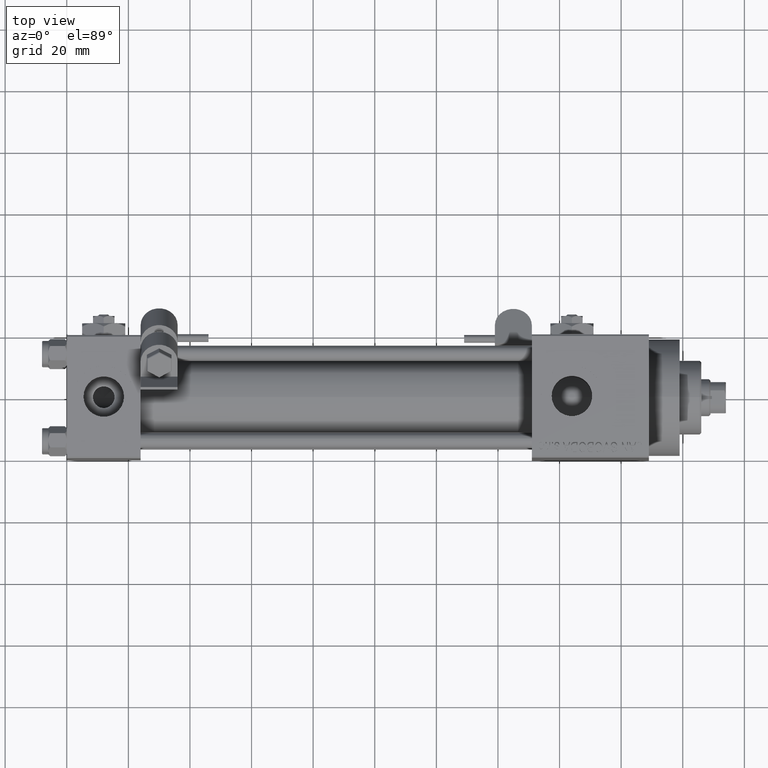
[diagram: clean part render]
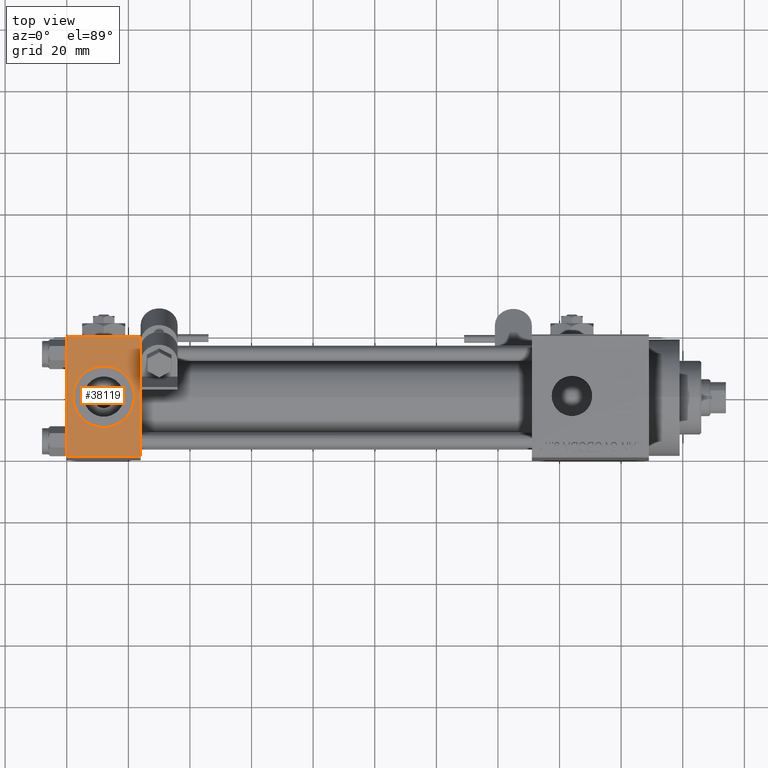
[diagram: same view with one face highlighted and labeled with its STEP entity id]
A machine part, top view. The second image highlights one B-rep face of the part: STEP entity #38119.
In plain terms, the highlighted planar face has unit normal (0, 0, -1).
Its self-contained STEP definition (entity closure, byte-faithful):
#1130 = CARTESIAN_POINT ( 'NONE',  ( 12.00000000000000000, 1.540743955509788682E-30, 19.99999999999999645 ) ) ;
#1450 = EDGE_CURVE ( 'NONE', #37485, #49149, #50050, .T. ) ;
#2316 = CARTESIAN_POINT ( 'NONE',  ( 24.00000000000000000, 20.00000000000000000, 20.00000000000000000 ) ) ;
#3018 = ORIENTED_EDGE ( 'NONE', *, *, #19131, .T. ) ;
#5644 = VERTEX_POINT ( 'NONE', #31225 ) ;
#6137 = DIRECTION ( 'NONE',  ( 0.000000000000000000, -1.000000000000000000, -2.602085213965210149E-16 ) ) ;
#6300 = CARTESIAN_POINT ( 'NONE',  ( 24.00000000000000000, 20.00000000000000000, 20.00000000000000000 ) ) ;
#8783 = CIRCLE ( 'NONE', #40379, 9.999999999999998224 ) ;
#10084 = EDGE_LOOP ( 'NONE', ( #34581, #24821 ) ) ;
#10517 = CARTESIAN_POINT ( 'NONE',  ( 0.000000000000000000, 20.00000000000000000, 20.00000000000000000 ) ) ;
#13434 = ORIENTED_EDGE ( 'NONE', *, *, #1450, .T. ) ;
#15819 = CARTESIAN_POINT ( 'NONE',  ( 24.00000000000000000, 19.50000000000000000, 20.00000000000000000 ) ) ;
#16764 = EDGE_CURVE ( 'NONE', #33687, #46568, #42391, .T. ) ;
#18188 = FACE_OUTER_BOUND ( 'NONE', #38082, .T. ) ;
#18887 = CARTESIAN_POINT ( 'NONE',  ( 0.000000000000000000, -19.49999999999999289, 19.99999999999998934 ) ) ;
#19131 = EDGE_CURVE ( 'NONE', #49149, #5644, #32848, .T. ) ;
#19407 = VECTOR ( 'NONE', #40735, 1000.000000000000000 ) ;
#19834 = CARTESIAN_POINT ( 'NONE',  ( 12.00000000000000000, 1.540743955509788682E-30, 19.99999999999999645 ) ) ;
#23766 = AXIS2_PLACEMENT_3D ( 'NONE', #1130, #42970, #32060 ) ;
#24323 = AXIS2_PLACEMENT_3D ( 'NONE', #6300, #49631, #36981 ) ;
#24821 = ORIENTED_EDGE ( 'NONE', *, *, #16764, .F. ) ;
#27764 = CARTESIAN_POINT ( 'NONE',  ( 2.000000000000003553, 1.224646799147354440E-15, 19.99999999999999645 ) ) ;
#28997 = VERTEX_POINT ( 'NONE', #15819 ) ;
#29363 = PLANE ( 'NONE',  #24323 ) ;
#31225 = CARTESIAN_POINT ( 'NONE',  ( 24.00000000000000000, -19.49999999999999289, 19.99999999999998934 ) ) ;
#32060 = DIRECTION ( 'NONE',  ( 1.000000000000000000, 0.000000000000000000, 0.000000000000000000 ) ) ;
#32256 = DIRECTION ( 'NONE',  ( 0.000000000000000000, 0.000000000000000000, 1.000000000000000000 ) ) ;
#32848 = LINE ( 'NONE', #48803, #40834 ) ;
#32868 = EDGE_CURVE ( 'NONE', #46568, #33687, #8783, .T. ) ;
#33687 = VERTEX_POINT ( 'NONE', #27764 ) ;
#34080 = VECTOR ( 'NONE', #6137, 1000.000000000000000 ) ;
#34581 = ORIENTED_EDGE ( 'NONE', *, *, #32868, .F. ) ;
#34623 = CARTESIAN_POINT ( 'NONE',  ( 22.00000000000000000, 1.540743955509788682E-30, 19.99999999999999645 ) ) ;
#36981 = DIRECTION ( 'NONE',  ( 0.000000000000000000, 1.000000000000000000, 2.602085213965210149E-16 ) ) ;
#37425 = CARTESIAN_POINT ( 'NONE',  ( 0.000000000000000000, 19.50000000000000000, 20.00000000000000000 ) ) ;
#37485 = VERTEX_POINT ( 'NONE', #48312 ) ;
#37657 = DIRECTION ( 'NONE',  ( 1.000000000000000000, 0.000000000000000000, 0.000000000000000000 ) ) ;
#38082 = EDGE_LOOP ( 'NONE', ( #13434, #3018, #43184, #40626 ) ) ;
#38119 = ADVANCED_FACE ( 'NONE', ( #41031, #18188 ), #29363, .F. ) ;
#38702 = VECTOR ( 'NONE', #49296, 1000.000000000000000 ) ;
#39102 = EDGE_CURVE ( 'NONE', #28997, #37485, #49075, .T. ) ;
#39613 = DIRECTION ( 'NONE',  ( 1.000000000000000000, 0.000000000000000000, 0.000000000000000000 ) ) ;
#40379 = AXIS2_PLACEMENT_3D ( 'NONE', #19834, #32256, #39613 ) ;
#40626 = ORIENTED_EDGE ( 'NONE', *, *, #39102, .T. ) ;
#40735 = DIRECTION ( 'NONE',  ( -1.000000000000000000, 0.000000000000000000, 0.000000000000000000 ) ) ;
#40834 = VECTOR ( 'NONE', #37657, 1000.000000000000000 ) ;
#41031 = FACE_BOUND ( 'NONE', #10084, .T. ) ;
#41889 = EDGE_CURVE ( 'NONE', #28997, #5644, #44924, .T. ) ;
#42391 = CIRCLE ( 'NONE', #23766, 9.999999999999998224 ) ;
#42970 = DIRECTION ( 'NONE',  ( 0.000000000000000000, 0.000000000000000000, 1.000000000000000000 ) ) ;
#43184 = ORIENTED_EDGE ( 'NONE', *, *, #41889, .F. ) ;
#44924 = LINE ( 'NONE', #2316, #34080 ) ;
#46568 = VERTEX_POINT ( 'NONE', #34623 ) ;
#48312 = CARTESIAN_POINT ( 'NONE',  ( 0.000000000000000000, 19.50000000000000000, 20.00000000000000000 ) ) ;
#48803 = CARTESIAN_POINT ( 'NONE',  ( 24.00000000000000000, -19.49999999999999289, 19.99999999999998934 ) ) ;
#49075 = LINE ( 'NONE', #37425, #19407 ) ;
#49149 = VERTEX_POINT ( 'NONE', #18887 ) ;
#49296 = DIRECTION ( 'NONE',  ( 0.000000000000000000, -1.000000000000000000, -2.602085213965210149E-16 ) ) ;
#49631 = DIRECTION ( 'NONE',  ( 0.000000000000000000, 2.602085213965210149E-16, -1.000000000000000000 ) ) ;
#50050 = LINE ( 'NONE', #10517, #38702 ) ;